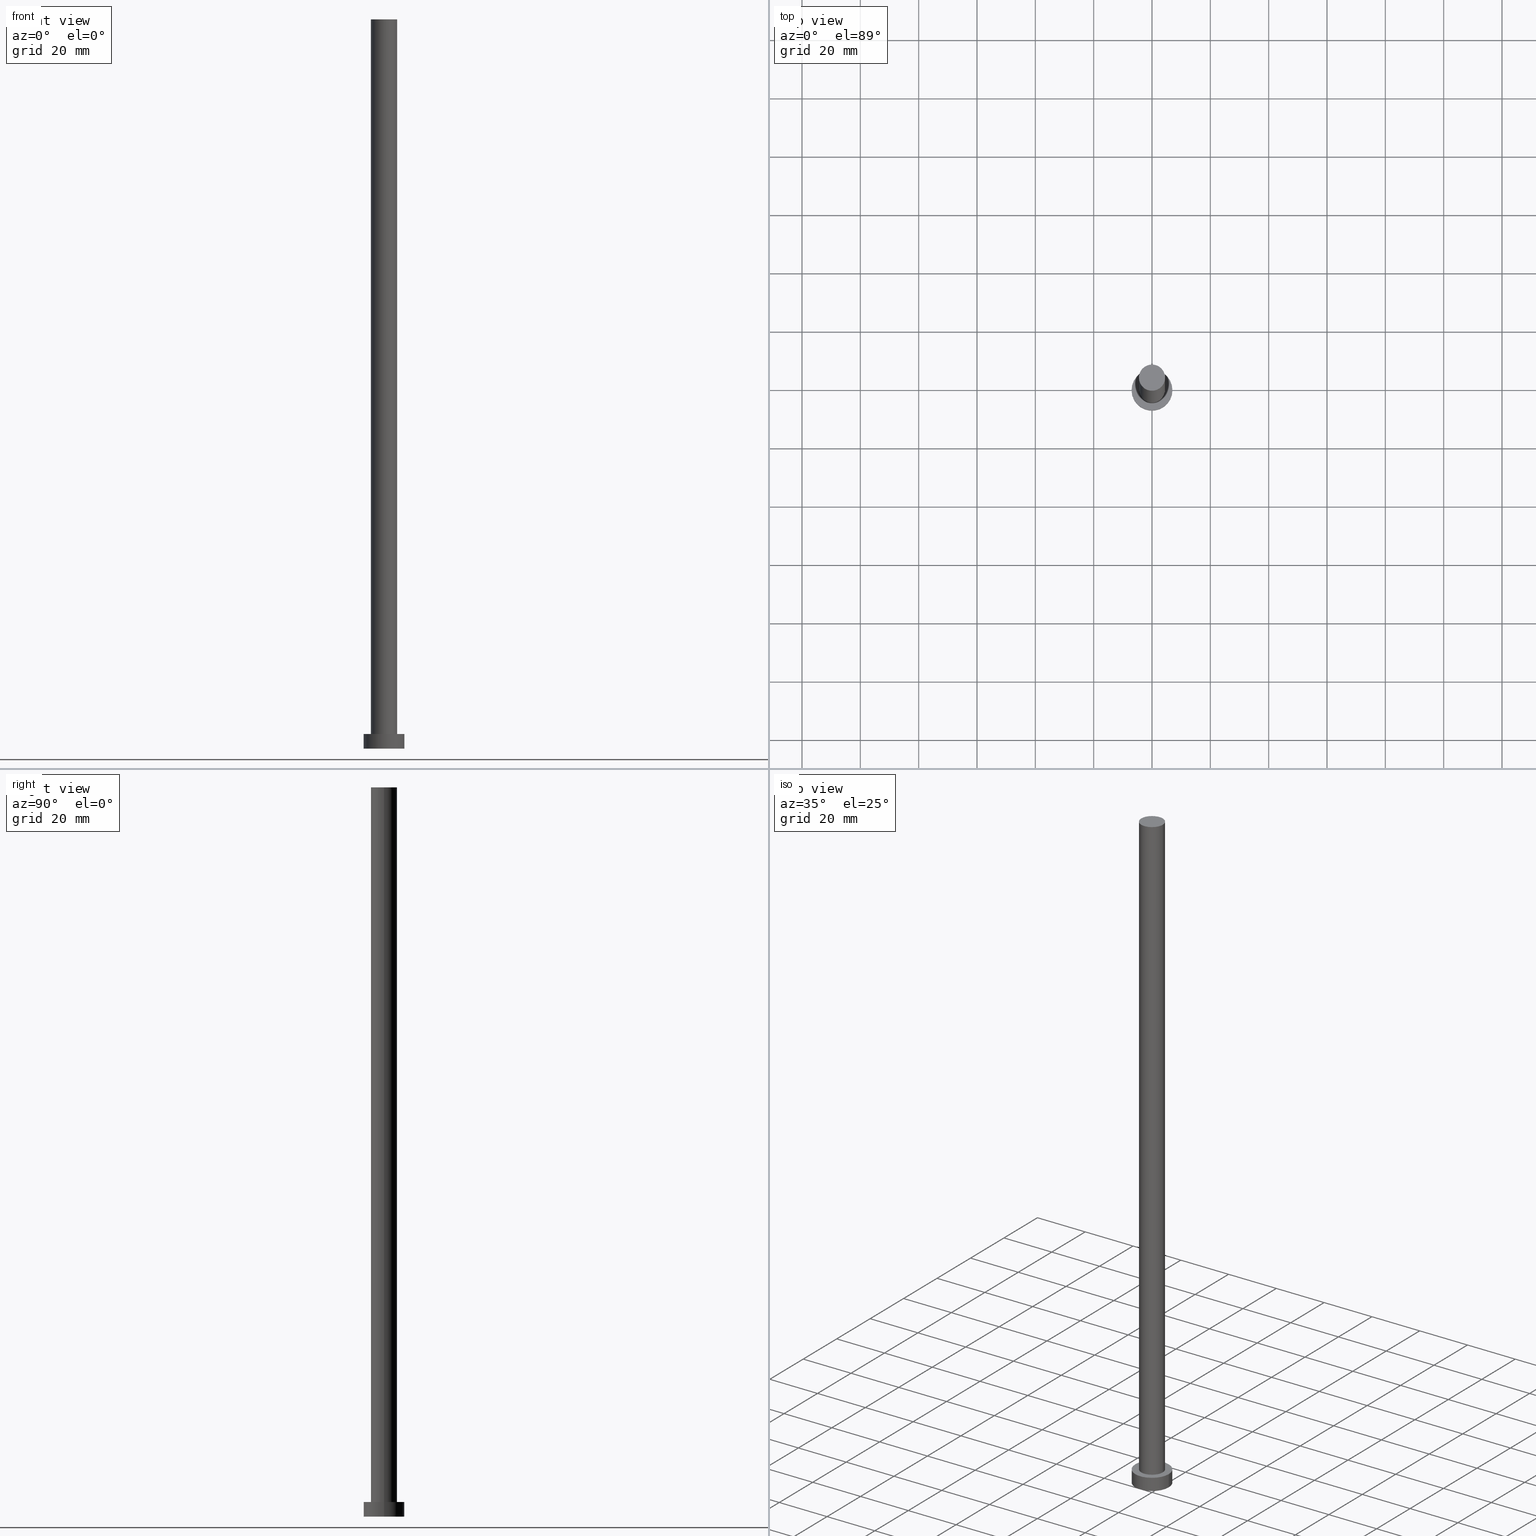
[diagram: canonical four-view strip — front | top / right | iso, engineering-drawing reading convention]
A machine part, canonical four-view strip (front | top / right | iso — engineering-drawing reading convention). The complete STEP part file that produces these views, byte-faithful:
ISO-10303-21;
HEADER;
FILE_DESCRIPTION (( 'STEP AP203' ),
    '1' );
FILE_NAME ('56e0.STEP',
    '2023-02-13T13:51:21',
    ( '' ),
    ( '' ),
    'SwSTEP 2.0',
    'SolidWorks 2019',
    '' );
FILE_SCHEMA (( 'CONFIG_CONTROL_DESIGN' ));
ENDSEC;

DATA;
#1 = EDGE_LOOP ( 'NONE', ( #187, #79, #147, #165 ) ) ;
#2 = APPROVAL_PERSON_ORGANIZATION ( #201, #103, #213 ) ;
#3 = FACE_BOUND ( 'NONE', #143, .T. ) ;
#4 = PLANE ( 'NONE',  #205 ) ;
#5 = DIRECTION ( 'NONE',  ( 1.000000000000000000, 0.000000000000000000, 0.000000000000000000 ) ) ;
#6 = ADVANCED_FACE ( 'NONE', ( #29 ), #225, .T. ) ;
#7 = CARTESIAN_POINT ( 'NONE',  ( -7.000000000000000000, 0.000000000000000000, 5.000000000000000000 ) ) ;
#8 = CARTESIAN_POINT ( 'NONE',  ( -4.500000000000000000, 0.000000000000000000, 250.0000000000000000 ) ) ;
#9 = EDGE_CURVE ( 'NONE', #179, #63, #72, .T. ) ;
#10 = AXIS2_PLACEMENT_3D ( 'NONE', #35, #140, #211 ) ;
#11 = ORIENTED_EDGE ( 'NONE', *, *, #126, .T. ) ;
#12 = PERSON_AND_ORGANIZATION ( #91, #214 ) ;
#13 = CARTESIAN_POINT ( 'NONE',  ( 0.000000000000000000, 0.000000000000000000, 5.000000000000000000 ) ) ;
#14 = DATE_AND_TIME ( #233, #146 ) ;
#15 = DIRECTION ( 'NONE',  ( 0.000000000000000000, 0.000000000000000000, 1.000000000000000000 ) ) ;
#16 = APPROVAL_STATUS ( 'not_yet_approved' ) ;
#17 = ORIENTED_EDGE ( 'NONE', *, *, #189, .F. ) ;
#18 = DATE_TIME_ROLE ( 'creation_date' ) ;
#19 = CIRCLE ( 'NONE', #141, 7.000000000000000000 ) ;
#20 = ORIENTED_EDGE ( 'NONE', *, *, #9, .F. ) ;
#21 = CARTESIAN_POINT ( 'NONE',  ( 4.500000000000000000, 5.510910596163088569E-16, 250.0000000000000000 ) ) ;
#22 = ORIENTED_EDGE ( 'NONE', *, *, #135, .T. ) ;
#23 = CARTESIAN_POINT ( 'NONE',  ( -7.000000000000000000, 0.000000000000000000, 5.000000000000000000 ) ) ;
#24 = CARTESIAN_POINT ( 'NONE',  ( 7.000000000000000000, 8.572527594031473190E-16, 5.000000000000000000 ) ) ;
#25 = CARTESIAN_POINT ( 'NONE',  ( 7.000000000000000000, 8.572527594031473190E-16, 0.000000000000000000 ) ) ;
#26 = PRODUCT_DEFINITION_FORMATION_WITH_SPECIFIED_SOURCE ( 'LIBOVOLN�', '', #234, .NOT_KNOWN. ) ;
#27 = APPLICATION_PROTOCOL_DEFINITION ( 'international standard', 'config_control_design', 1994, #200 ) ;
#28 = DIRECTION ( 'NONE',  ( 0.000000000000000000, 0.000000000000000000, 1.000000000000000000 ) ) ;
#29 = FACE_OUTER_BOUND ( 'NONE', #228, .T. ) ;
#30 = FACE_OUTER_BOUND ( 'NONE', #114, .T. ) ;
#31 = PRODUCT_DEFINITION_SHAPE ( 'NONE', 'NONE',  #81 ) ;
#32 = APPROVAL_DATE_TIME ( #254, #40 ) ;
#33 = DIRECTION ( 'NONE',  ( -0.000000000000000000, -0.000000000000000000, -1.000000000000000000 ) ) ;
#34 = DIRECTION ( 'NONE',  ( 1.000000000000000000, 0.000000000000000000, 0.000000000000000000 ) ) ;
#35 = CARTESIAN_POINT ( 'NONE',  ( 0.000000000000000000, 0.000000000000000000, 250.0000000000000000 ) ) ;
#36 = ORIENTED_EDGE ( 'NONE', *, *, #87, .F. ) ;
#37 = SECURITY_CLASSIFICATION_LEVEL ( 'unclassified' ) ;
#38 = CC_DESIGN_PERSON_AND_ORGANIZATION_ASSIGNMENT ( #117, #239, ( #105 ) ) ;
#39 = APPLICATION_CONTEXT ( 'configuration controlled 3d designs of mechanical parts and assemblies' ) ;
#40 = APPROVAL ( #16, 'NEUR�EN�' ) ;
#41 = EDGE_LOOP ( 'NONE', ( #22, #221 ) ) ;
#42 = AXIS2_PLACEMENT_3D ( 'NONE', #116, #15, #252 ) ;
#43 = DIRECTION ( 'NONE',  ( -1.000000000000000000, 0.000000000000000000, 0.000000000000000000 ) ) ;
#44 = CC_DESIGN_DATE_AND_TIME_ASSIGNMENT ( #55, #18, ( #81 ) ) ;
#45 = AXIS2_PLACEMENT_3D ( 'NONE', #157, #28, #236 ) ;
#46 = CARTESIAN_POINT ( 'NONE',  ( 0.000000000000000000, 0.000000000000000000, 250.0000000000000000 ) ) ;
#47 = VECTOR ( 'NONE', #33, 1000.000000000000000 ) ;
#48 = DIRECTION ( 'NONE',  ( 1.000000000000000000, 0.000000000000000000, 0.000000000000000000 ) ) ;
#49 = CIRCLE ( 'NONE', #121, 4.500000000000000000 ) ;
#50 = ORIENTED_EDGE ( 'NONE', *, *, #66, .F. ) ;
#51 =( LENGTH_UNIT ( ) NAMED_UNIT ( * ) SI_UNIT ( .MILLI., .METRE. ) );
#52 = ORIENTED_EDGE ( 'NONE', *, *, #126, .F. ) ;
#53 =( NAMED_UNIT ( * ) PLANE_ANGLE_UNIT ( ) SI_UNIT ( $, .RADIAN. ) );
#54 = CLOSED_SHELL ( 'NONE', ( #95, #218, #249, #107, #194, #6, #243 ) ) ;
#55 = DATE_AND_TIME ( #182, #167 ) ;
#56 = ORIENTED_EDGE ( 'NONE', *, *, #145, .T. ) ;
#57 = APPLICATION_PROTOCOL_DEFINITION ( 'international standard', 'config_control_design', 1994, #39 ) ;
#58 = ORIENTED_EDGE ( 'NONE', *, *, #189, .T. ) ;
#59 = AXIS2_PLACEMENT_3D ( 'NONE', #210, #112, #206 ) ;
#60 = COORDINATED_UNIVERSAL_TIME_OFFSET ( 1, 0, .AHEAD. ) ;
#61 = CC_DESIGN_PERSON_AND_ORGANIZATION_ASSIGNMENT ( #99, #217, ( #26 ) ) ;
#62 = UNCERTAINTY_MEASURE_WITH_UNIT (LENGTH_MEASURE( 1.000000000000000082E-05 ), #51, 'distance_accuracy_value', 'NONE');
#63 = VERTEX_POINT ( 'NONE', #23 ) ;
#64 = AXIS2_PLACEMENT_3D ( 'NONE', #46, #172, #43 ) ;
#65 = CC_DESIGN_APPROVAL ( #148, ( #26 ) ) ;
#66 = EDGE_CURVE ( 'NONE', #178, #185, #128, .T. ) ;
#67 = DIRECTION ( 'NONE',  ( 1.000000000000000000, 0.000000000000000000, -0.000000000000000000 ) ) ;
#68 = DIRECTION ( 'NONE',  ( 0.000000000000000000, 0.000000000000000000, 1.000000000000000000 ) ) ;
#69 = CARTESIAN_POINT ( 'NONE',  ( -4.500000000000000000, 0.000000000000000000, 5.000000000000000000 ) ) ;
#70 = CARTESIAN_POINT ( 'NONE',  ( 0.000000000000000000, 0.000000000000000000, 5.000000000000000000 ) ) ;
#71 = DIRECTION ( 'NONE',  ( -1.000000000000000000, 0.000000000000000000, 0.000000000000000000 ) ) ;
#72 = CIRCLE ( 'NONE', #59, 7.000000000000000000 ) ;
#73 = DIRECTION ( 'NONE',  ( 0.000000000000000000, 0.000000000000000000, 1.000000000000000000 ) ) ;
#74 = PERSON_AND_ORGANIZATION ( #91, #214 ) ;
#75 = FACE_OUTER_BOUND ( 'NONE', #253, .T. ) ;
#76 = APPROVAL_DATE_TIME ( #14, #148 ) ;
#77 = AXIS2_PLACEMENT_3D ( 'NONE', #13, #158, #71 ) ;
#78 = LINE ( 'NONE', #7, #171 ) ;
#79 = ORIENTED_EDGE ( 'NONE', *, *, #66, .T. ) ;
#80 = APPROVAL_ROLE ( '' ) ;
#81 = PRODUCT_DEFINITION ( 'NEZN�M�', '', #26, #242 ) ;
#82 = APPROVAL_PERSON_ORGANIZATION ( #12, #148, #80 ) ;
#83 = CIRCLE ( 'NONE', #42, 7.000000000000000000 ) ;
#84 = CARTESIAN_POINT ( 'NONE',  ( 4.500000000000000000, 5.510910596163088569E-16, 5.000000000000000000 ) ) ;
#85 = APPROVAL_PERSON_ORGANIZATION ( #164, #40, #139 ) ;
#86 = ORIENTED_EDGE ( 'NONE', *, *, #199, .F. ) ;
#87 = EDGE_CURVE ( 'NONE', #96, #232, #19, .T. ) ;
#88 = CARTESIAN_POINT ( 'NONE',  ( 0.000000000000000000, 0.000000000000000000, 5.000000000000000000 ) ) ;
#89 = ORIENTED_EDGE ( 'NONE', *, *, #159, .T. ) ;
#90 = CIRCLE ( 'NONE', #129, 4.500000000000000000 ) ;
#91 = PERSON ( 'NEUR�EN�', 'NEUR�EN�', 'NEUR�EN�', ('NEUR�EN�'), ('NEUR�EN�'), ('NEUR�EN�') ) ;
#92 = CARTESIAN_POINT ( 'NONE',  ( 0.000000000000000000, 0.000000000000000000, 0.000000000000000000 ) ) ;
#93 = CARTESIAN_POINT ( 'NONE',  ( 0.000000000000000000, 0.000000000000000000, 5.000000000000000000 ) ) ;
#94 = DIRECTION ( 'NONE',  ( -0.000000000000000000, -0.000000000000000000, -1.000000000000000000 ) ) ;
#95 = ADVANCED_FACE ( 'NONE', ( #131 ), #108, .T. ) ;
#96 = VERTEX_POINT ( 'NONE', #25 ) ;
#97 = APPROVAL_DATE_TIME ( #238, #103 ) ;
#98 = VERTEX_POINT ( 'NONE', #8 ) ;
#99 = PERSON_AND_ORGANIZATION ( #91, #214 ) ;
#100 = DIRECTION ( 'NONE',  ( 1.000000000000000000, 0.000000000000000000, -0.000000000000000000 ) ) ;
#101 = MECHANICAL_CONTEXT ( 'NONE', #200, 'mechanical' ) ;
#102 = CC_DESIGN_APPROVAL ( #103, ( #105 ) ) ;
#103 = APPROVAL ( #197, 'NEUR�EN�' ) ;
#104 = EDGE_LOOP ( 'NONE', ( #20, #11, #222, #17 ) ) ;
#105 = SECURITY_CLASSIFICATION ( '', '', #37 ) ;
#106 = ORIENTED_EDGE ( 'NONE', *, *, #155, .F. ) ;
#107 = ADVANCED_FACE ( 'NONE', ( #3, #170 ), #4, .T. ) ;
#108 = CYLINDRICAL_SURFACE ( 'NONE', #208, 4.500000000000000000 ) ;
#109 = DIRECTION ( 'NONE',  ( -0.000000000000000000, -0.000000000000000000, -1.000000000000000000 ) ) ;
#110 = VECTOR ( 'NONE', #244, 1000.000000000000000 ) ;
#111 = DIRECTION ( 'NONE',  ( 0.000000000000000000, 0.000000000000000000, 1.000000000000000000 ) ) ;
#112 = DIRECTION ( 'NONE',  ( 0.000000000000000000, 0.000000000000000000, 1.000000000000000000 ) ) ;
#113 = DIRECTION ( 'NONE',  ( -1.000000000000000000, 0.000000000000000000, 0.000000000000000000 ) ) ;
#114 = EDGE_LOOP ( 'NONE', ( #52, #106, #58, #212 ) ) ;
#115 = COORDINATED_UNIVERSAL_TIME_OFFSET ( 1, 0, .AHEAD. ) ;
#116 = CARTESIAN_POINT ( 'NONE',  ( 0.000000000000000000, 0.000000000000000000, 0.000000000000000000 ) ) ;
#117 = PERSON_AND_ORGANIZATION ( #91, #214 ) ;
#118 = CARTESIAN_POINT ( 'NONE',  ( -7.000000000000000000, 0.000000000000000000, 0.000000000000000000 ) ) ;
#119 = VERTEX_POINT ( 'NONE', #69 ) ;
#120 = DATE_TIME_ROLE ( 'classification_date' ) ;
#121 = AXIS2_PLACEMENT_3D ( 'NONE', #177, #111, #133 ) ;
#122 = COORDINATED_UNIVERSAL_TIME_OFFSET ( 1, 0, .AHEAD. ) ;
#123 = CIRCLE ( 'NONE', #168, 7.000000000000000000 ) ;
#124 = EDGE_LOOP ( 'NONE', ( #169, #125 ) ) ;
#125 = ORIENTED_EDGE ( 'NONE', *, *, #9, .T. ) ;
#126 = EDGE_CURVE ( 'NONE', #179, #96, #227, .T. ) ;
#127 = AXIS2_PLACEMENT_3D ( 'NONE', #93, #149, #248 ) ;
#128 = LINE ( 'NONE', #21, #110 ) ;
#129 = AXIS2_PLACEMENT_3D ( 'NONE', #193, #247, #5 ) ;
#130 = CC_DESIGN_PERSON_AND_ORGANIZATION_ASSIGNMENT ( #202, #215, ( #81 ) ) ;
#131 = FACE_OUTER_BOUND ( 'NONE', #1, .T. ) ;
#132 = CIRCLE ( 'NONE', #10, 4.500000000000000000 ) ;
#133 = DIRECTION ( 'NONE',  ( 1.000000000000000000, 0.000000000000000000, 0.000000000000000000 ) ) ;
#134 = CARTESIAN_POINT ( 'NONE',  ( -4.500000000000000000, 0.000000000000000000, 250.0000000000000000 ) ) ;
#135 = EDGE_CURVE ( 'NONE', #98, #178, #90, .T. ) ;
#136 = LOCAL_TIME ( 14, 51, 21.00000000000000000, #181 ) ;
#137 = PERSON_AND_ORGANIZATION_ROLE ( 'creator' ) ;
#138 = FACE_OUTER_BOUND ( 'NONE', #104, .T. ) ;
#139 = APPROVAL_ROLE ( '' ) ;
#140 = DIRECTION ( 'NONE',  ( 0.000000000000000000, 0.000000000000000000, 1.000000000000000000 ) ) ;
#141 = AXIS2_PLACEMENT_3D ( 'NONE', #152, #68, #48 ) ;
#142 = CC_DESIGN_DATE_AND_TIME_ASSIGNMENT ( #180, #120, ( #105 ) ) ;
#143 = EDGE_LOOP ( 'NONE', ( #153, #86 ) ) ;
#144 = CALENDAR_DATE ( 2023, 13, 2 ) ;
#145 = EDGE_CURVE ( 'NONE', #119, #185, #245, .T. ) ;
#146 = LOCAL_TIME ( 14, 51, 21.00000000000000000, #160 ) ;
#147 = ORIENTED_EDGE ( 'NONE', *, *, #199, .T. ) ;
#148 = APPROVAL ( #163, 'NEUR�EN�' ) ;
#149 = DIRECTION ( 'NONE',  ( 0.000000000000000000, 0.000000000000000000, 1.000000000000000000 ) ) ;
#150 =( NAMED_UNIT ( * ) SI_UNIT ( $, .STERADIAN. ) SOLID_ANGLE_UNIT ( ) );
#151 = CARTESIAN_POINT ( 'NONE',  ( 7.000000000000000000, 8.572527594031473190E-16, 5.000000000000000000 ) ) ;
#152 = CARTESIAN_POINT ( 'NONE',  ( 0.000000000000000000, 0.000000000000000000, 0.000000000000000000 ) ) ;
#153 = ORIENTED_EDGE ( 'NONE', *, *, #145, .F. ) ;
#154 = DIRECTION ( 'NONE',  ( 0.000000000000000000, 0.000000000000000000, 1.000000000000000000 ) ) ;
#155 = EDGE_CURVE ( 'NONE', #63, #179, #123, .T. ) ;
#156 = DIRECTION ( 'NONE',  ( 0.000000000000000000, 0.000000000000000000, 1.000000000000000000 ) ) ;
#157 = CARTESIAN_POINT ( 'NONE',  ( 0.000000000000000000, 0.000000000000000000, 0.000000000000000000 ) ) ;
#158 = DIRECTION ( 'NONE',  ( -0.000000000000000000, -0.000000000000000000, -1.000000000000000000 ) ) ;
#159 = EDGE_CURVE ( 'NONE', #98, #119, #231, .T. ) ;
#160 = COORDINATED_UNIVERSAL_TIME_OFFSET ( 1, 0, .AHEAD. ) ;
#161 = CARTESIAN_POINT ( 'NONE',  ( 0.000000000000000000, 0.000000000000000000, 5.000000000000000000 ) ) ;
#162 = PLANE ( 'NONE',  #45 ) ;
#163 = APPROVAL_STATUS ( 'not_yet_approved' ) ;
#164 = PERSON_AND_ORGANIZATION ( #91, #214 ) ;
#165 = ORIENTED_EDGE ( 'NONE', *, *, #159, .F. ) ;
#166 = PERSON_AND_ORGANIZATION ( #91, #214 ) ;
#167 = LOCAL_TIME ( 14, 51, 21.00000000000000000, #115 ) ;
#168 = AXIS2_PLACEMENT_3D ( 'NONE', #70, #156, #216 ) ;
#169 = ORIENTED_EDGE ( 'NONE', *, *, #155, .T. ) ;
#170 = FACE_OUTER_BOUND ( 'NONE', #124, .T. ) ;
#171 = VECTOR ( 'NONE', #94, 1000.000000000000000 ) ;
#172 = DIRECTION ( 'NONE',  ( -0.000000000000000000, -0.000000000000000000, -1.000000000000000000 ) ) ;
#173 = CARTESIAN_POINT ( 'NONE',  ( 0.000000000000000000, 0.000000000000000000, 250.0000000000000000 ) ) ;
#174 = EDGE_CURVE ( 'NONE', #232, #96, #83, .T. ) ;
#175 = CYLINDRICAL_SURFACE ( 'NONE', #77, 7.000000000000000000 ) ;
#176 = LOCAL_TIME ( 14, 51, 21.00000000000000000, #60 ) ;
#177 = CARTESIAN_POINT ( 'NONE',  ( 0.000000000000000000, 0.000000000000000000, 5.000000000000000000 ) ) ;
#178 = VERTEX_POINT ( 'NONE', #183 ) ;
#179 = VERTEX_POINT ( 'NONE', #151 ) ;
#180 = DATE_AND_TIME ( #235, #176 ) ;
#181 = COORDINATED_UNIVERSAL_TIME_OFFSET ( 1, 0, .AHEAD. ) ;
#182 = CALENDAR_DATE ( 2023, 13, 2 ) ;
#183 = CARTESIAN_POINT ( 'NONE',  ( 4.500000000000000000, 5.510910596163088569E-16, 250.0000000000000000 ) ) ;
#184 = AXIS2_PLACEMENT_3D ( 'NONE', #161, #195, #113 ) ;
#185 = VERTEX_POINT ( 'NONE', #84 ) ;
#186 = CC_DESIGN_PERSON_AND_ORGANIZATION_ASSIGNMENT ( #166, #255, ( #234 ) ) ;
#187 = ORIENTED_EDGE ( 'NONE', *, *, #203, .F. ) ;
#188 = CARTESIAN_POINT ( 'NONE',  ( 0.000000000000000000, 0.000000000000000000, 250.0000000000000000 ) ) ;
#189 = EDGE_CURVE ( 'NONE', #63, #232, #78, .T. ) ;
#190 = DIRECTION ( 'NONE',  ( 0.000000000000000000, 0.000000000000000000, 1.000000000000000000 ) ) ;
#191 = CC_DESIGN_SECURITY_CLASSIFICATION ( #105, ( #26 ) ) ;
#192 = DIRECTION ( 'NONE',  ( -0.000000000000000000, -0.000000000000000000, -1.000000000000000000 ) ) ;
#193 = CARTESIAN_POINT ( 'NONE',  ( 0.000000000000000000, 0.000000000000000000, 250.0000000000000000 ) ) ;
#194 = ADVANCED_FACE ( 'NONE', ( #75 ), #162, .F. ) ;
#195 = DIRECTION ( 'NONE',  ( -0.000000000000000000, -0.000000000000000000, -1.000000000000000000 ) ) ;
#196 = ORIENTED_EDGE ( 'NONE', *, *, #135, .F. ) ;
#197 = APPROVAL_STATUS ( 'not_yet_approved' ) ;
#198 = PLANE ( 'NONE',  #209 ) ;
#199 = EDGE_CURVE ( 'NONE', #185, #119, #49, .T. ) ;
#200 = APPLICATION_CONTEXT ( 'configuration controlled 3d designs of mechanical parts and assemblies' ) ;
#201 = PERSON_AND_ORGANIZATION ( #91, #214 ) ;
#202 = PERSON_AND_ORGANIZATION ( #91, #214 ) ;
#203 = EDGE_CURVE ( 'NONE', #178, #98, #132, .T. ) ;
#204 = CC_DESIGN_PERSON_AND_ORGANIZATION_ASSIGNMENT ( #74, #137, ( #26 ) ) ;
#205 = AXIS2_PLACEMENT_3D ( 'NONE', #88, #190, #67 ) ;
#206 = DIRECTION ( 'NONE',  ( 1.000000000000000000, 0.000000000000000000, 0.000000000000000000 ) ) ;
#207 = DIRECTION ( 'NONE',  ( -1.000000000000000000, 0.000000000000000000, 0.000000000000000000 ) ) ;
#208 = AXIS2_PLACEMENT_3D ( 'NONE', #188, #192, #207 ) ;
#209 = AXIS2_PLACEMENT_3D ( 'NONE', #173, #73, #100 ) ;
#210 = CARTESIAN_POINT ( 'NONE',  ( 0.000000000000000000, 0.000000000000000000, 5.000000000000000000 ) ) ;
#211 = DIRECTION ( 'NONE',  ( 1.000000000000000000, 0.000000000000000000, 0.000000000000000000 ) ) ;
#212 = ORIENTED_EDGE ( 'NONE', *, *, #174, .T. ) ;
#213 = APPROVAL_ROLE ( '' ) ;
#214 = ORGANIZATION ( 'NEUR�EN�', 'NEUR�EN�', '' ) ;
#215 = PERSON_AND_ORGANIZATION_ROLE ( 'creator' ) ;
#216 = DIRECTION ( 'NONE',  ( 1.000000000000000000, 0.000000000000000000, 0.000000000000000000 ) ) ;
#217 = PERSON_AND_ORGANIZATION_ROLE ( 'design_supplier' ) ;
#218 = ADVANCED_FACE ( 'NONE', ( #138 ), #175, .T. ) ;
#219 = SHAPE_DEFINITION_REPRESENTATION ( #31, #220 ) ;
#220 = ADVANCED_BREP_SHAPE_REPRESENTATION ( '56e0', ( #229, #223 ), #241 ) ;
#221 = ORIENTED_EDGE ( 'NONE', *, *, #203, .T. ) ;
#222 = ORIENTED_EDGE ( 'NONE', *, *, #87, .T. ) ;
#223 = AXIS2_PLACEMENT_3D ( 'NONE', #92, #154, #34 ) ;
#224 = PRODUCT_RELATED_PRODUCT_CATEGORY ( 'detail', '', ( #234 ) ) ;
#225 = CYLINDRICAL_SURFACE ( 'NONE', #64, 4.500000000000000000 ) ;
#226 = LOCAL_TIME ( 14, 51, 21.00000000000000000, #122 ) ;
#227 = LINE ( 'NONE', #24, #240 ) ;
#228 = EDGE_LOOP ( 'NONE', ( #50, #196, #89, #56 ) ) ;
#229 = MANIFOLD_SOLID_BREP ( 'P�idat vysunut�m3', #54 ) ;
#230 = CC_DESIGN_APPROVAL ( #40, ( #81 ) ) ;
#231 = LINE ( 'NONE', #134, #47 ) ;
#232 = VERTEX_POINT ( 'NONE', #118 ) ;
#233 = CALENDAR_DATE ( 2023, 13, 2 ) ;
#234 = PRODUCT ( '56e0', '56e0', '', ( #101 ) ) ;
#235 = CALENDAR_DATE ( 2023, 13, 2 ) ;
#236 = DIRECTION ( 'NONE',  ( 1.000000000000000000, 0.000000000000000000, -0.000000000000000000 ) ) ;
#237 = CYLINDRICAL_SURFACE ( 'NONE', #184, 7.000000000000000000 ) ;
#238 = DATE_AND_TIME ( #251, #136 ) ;
#239 = PERSON_AND_ORGANIZATION_ROLE ( 'classification_officer' ) ;
#240 = VECTOR ( 'NONE', #109, 1000.000000000000000 ) ;
#241 =( GEOMETRIC_REPRESENTATION_CONTEXT ( 3 ) GLOBAL_UNCERTAINTY_ASSIGNED_CONTEXT ( ( #62 ) ) GLOBAL_UNIT_ASSIGNED_CONTEXT ( ( #51, #53, #150 ) ) REPRESENTATION_CONTEXT ( 'NONE', 'WORKASPACE' ) );
#242 = DESIGN_CONTEXT ( 'detailed design', #39, 'design' ) ;
#243 = ADVANCED_FACE ( 'NONE', ( #250 ), #198, .T. ) ;
#244 = DIRECTION ( 'NONE',  ( -0.000000000000000000, -0.000000000000000000, -1.000000000000000000 ) ) ;
#245 = CIRCLE ( 'NONE', #127, 4.500000000000000000 ) ;
#246 = ORIENTED_EDGE ( 'NONE', *, *, #174, .F. ) ;
#247 = DIRECTION ( 'NONE',  ( 0.000000000000000000, 0.000000000000000000, 1.000000000000000000 ) ) ;
#248 = DIRECTION ( 'NONE',  ( 1.000000000000000000, 0.000000000000000000, 0.000000000000000000 ) ) ;
#249 = ADVANCED_FACE ( 'NONE', ( #30 ), #237, .T. ) ;
#250 = FACE_OUTER_BOUND ( 'NONE', #41, .T. ) ;
#251 = CALENDAR_DATE ( 2023, 13, 2 ) ;
#252 = DIRECTION ( 'NONE',  ( 1.000000000000000000, 0.000000000000000000, 0.000000000000000000 ) ) ;
#253 = EDGE_LOOP ( 'NONE', ( #246, #36 ) ) ;
#254 = DATE_AND_TIME ( #144, #226 ) ;
#255 = PERSON_AND_ORGANIZATION_ROLE ( 'design_owner' ) ;
ENDSEC;
END-ISO-10303-21;
